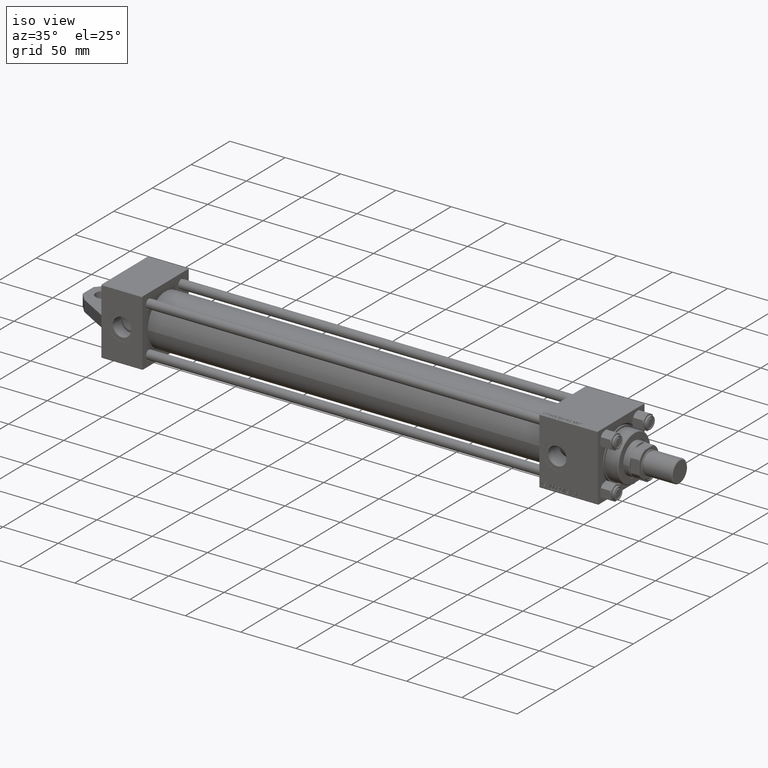
[diagram: clean part render]
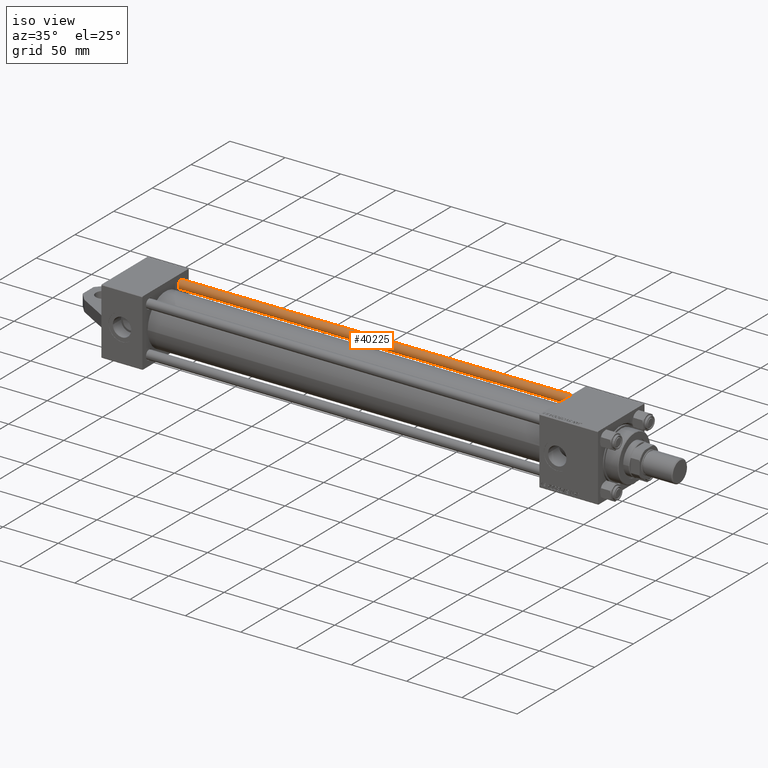
[diagram: same view with one face highlighted and labeled with its STEP entity id]
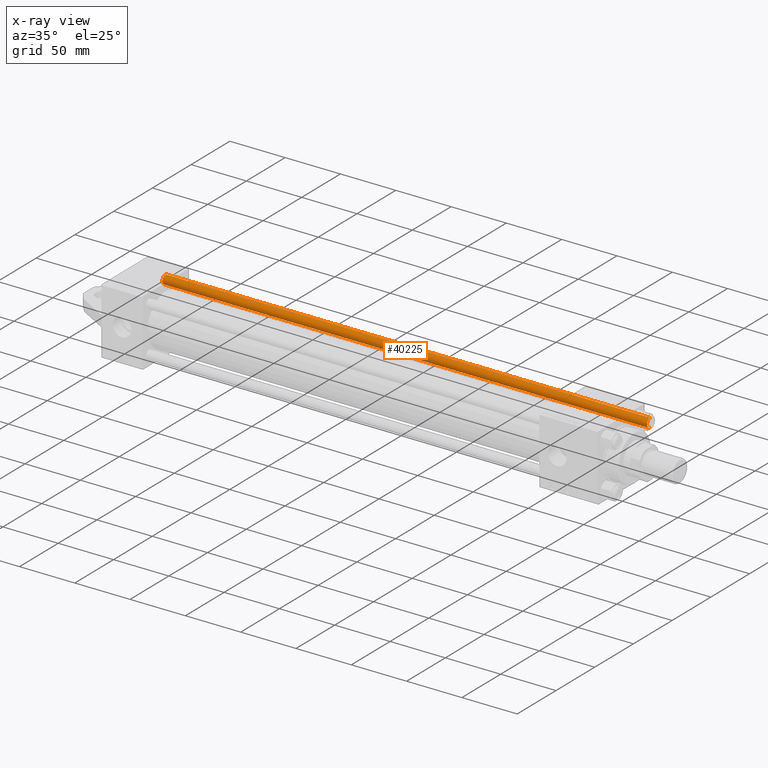
[diagram: x-ray of the same camera — body ghosted, the highlighted face saturated]
A machine part, iso view. The second image highlights one B-rep face of the part: STEP entity #40225.
The next image is the same camera in x-ray: the body ghosted, the highlighted face saturated — about 0% of this face is hidden behind the body in this view.
In plain terms, the highlighted cylindrical surface (edge-blend (fillet) strip) has radius 4 mm, axis along (-1, 0, -0).
Its self-contained STEP definition (entity closure, byte-faithful):
#483 = VERTEX_POINT ( 'NONE', #8620 ) ;
#2723 = CARTESIAN_POINT ( 'NONE',  ( -4.000000000000000000, 0.000000000000000000, 439.0000000000000000 ) ) ;
#4278 = DIRECTION ( 'NONE',  ( -0.000000000000000000, -0.000000000000000000, -1.000000000000000000 ) ) ;
#4512 = LINE ( 'NONE', #29447, #32148 ) ;
#5238 = VERTEX_POINT ( 'NONE', #30989 ) ;
#5515 = EDGE_CURVE ( 'NONE', #29386, #45938, #30732, .T. ) ;
#7266 = FACE_OUTER_BOUND ( 'NONE', #10815, .T. ) ;
#7494 = DIRECTION ( 'NONE',  ( -1.000000000000000000, 0.000000000000000000, 0.000000000000000000 ) ) ;
#8007 = AXIS2_PLACEMENT_3D ( 'NONE', #19080, #11103, #18612 ) ;
#8620 = CARTESIAN_POINT ( 'NONE',  ( 4.000000000000000000, 4.898587196589412829E-16, 438.5000000000000000 ) ) ;
#9399 = ORIENTED_EDGE ( 'NONE', *, *, #39992, .T. ) ;
#10815 = EDGE_LOOP ( 'NONE', ( #31939, #17159, #32334, #9399 ) ) ;
#11071 = CARTESIAN_POINT ( 'NONE',  ( 0.000000000000000000, 0.000000000000000000, 438.5000000000000000 ) ) ;
#11103 = DIRECTION ( 'NONE',  ( -0.000000000000000000, -0.000000000000000000, 1.000000000000000000 ) ) ;
#13365 = CARTESIAN_POINT ( 'NONE',  ( -4.000000000000000000, 0.000000000000000000, 0.5000000000000004441 ) ) ;
#14466 = EDGE_CURVE ( 'NONE', #483, #5238, #4512, .T. ) ;
#17159 = ORIENTED_EDGE ( 'NONE', *, *, #20799, .T. ) ;
#18087 = CARTESIAN_POINT ( 'NONE',  ( 0.000000000000000000, 0.000000000000000000, 439.0000000000000000 ) ) ;
#18612 = DIRECTION ( 'NONE',  ( 1.000000000000000000, 0.000000000000000000, 0.000000000000000000 ) ) ;
#19080 = CARTESIAN_POINT ( 'NONE',  ( 0.000000000000000000, 0.000000000000000000, 0.5000000000000004441 ) ) ;
#20799 = EDGE_CURVE ( 'NONE', #483, #29386, #25642, .T. ) ;
#23213 = DIRECTION ( 'NONE',  ( -0.000000000000000000, -0.000000000000000000, -1.000000000000000000 ) ) ;
#25642 = CIRCLE ( 'NONE', #42193, 4.000000000000000000 ) ;
#25838 = CARTESIAN_POINT ( 'NONE',  ( -4.000000000000000000, 0.000000000000000000, 438.5000000000000000 ) ) ;
#26083 = CYLINDRICAL_SURFACE ( 'NONE', #41807, 4.000000000000000000 ) ;
#28696 = DIRECTION ( 'NONE',  ( 0.000000000000000000, 0.000000000000000000, -1.000000000000000000 ) ) ;
#29386 = VERTEX_POINT ( 'NONE', #25838 ) ;
#29447 = CARTESIAN_POINT ( 'NONE',  ( 4.000000000000000000, 4.898587196589412829E-16, 439.0000000000000000 ) ) ;
#29766 = VECTOR ( 'NONE', #23213, 1000.000000000000000 ) ;
#30732 = LINE ( 'NONE', #2723, #29766 ) ;
#30989 = CARTESIAN_POINT ( 'NONE',  ( 4.000000000000000000, 4.898587196589412829E-16, 0.5000000000000004441 ) ) ;
#31939 = ORIENTED_EDGE ( 'NONE', *, *, #14466, .F. ) ;
#32148 = VECTOR ( 'NONE', #4278, 1000.000000000000000 ) ;
#32334 = ORIENTED_EDGE ( 'NONE', *, *, #5515, .T. ) ;
#39739 = DIRECTION ( 'NONE',  ( 1.000000000000000000, 0.000000000000000000, 0.000000000000000000 ) ) ;
#39953 = DIRECTION ( 'NONE',  ( -0.000000000000000000, -0.000000000000000000, -1.000000000000000000 ) ) ;
#39992 = EDGE_CURVE ( 'NONE', #45938, #5238, #44066, .T. ) ;
#40225 = ADVANCED_FACE ( 'NONE', ( #7266 ), #26083, .T. ) ;
#41807 = AXIS2_PLACEMENT_3D ( 'NONE', #18087, #39953, #7494 ) ;
#42193 = AXIS2_PLACEMENT_3D ( 'NONE', #11071, #28696, #39739 ) ;
#44066 = CIRCLE ( 'NONE', #8007, 4.000000000000000000 ) ;
#45938 = VERTEX_POINT ( 'NONE', #13365 ) ;